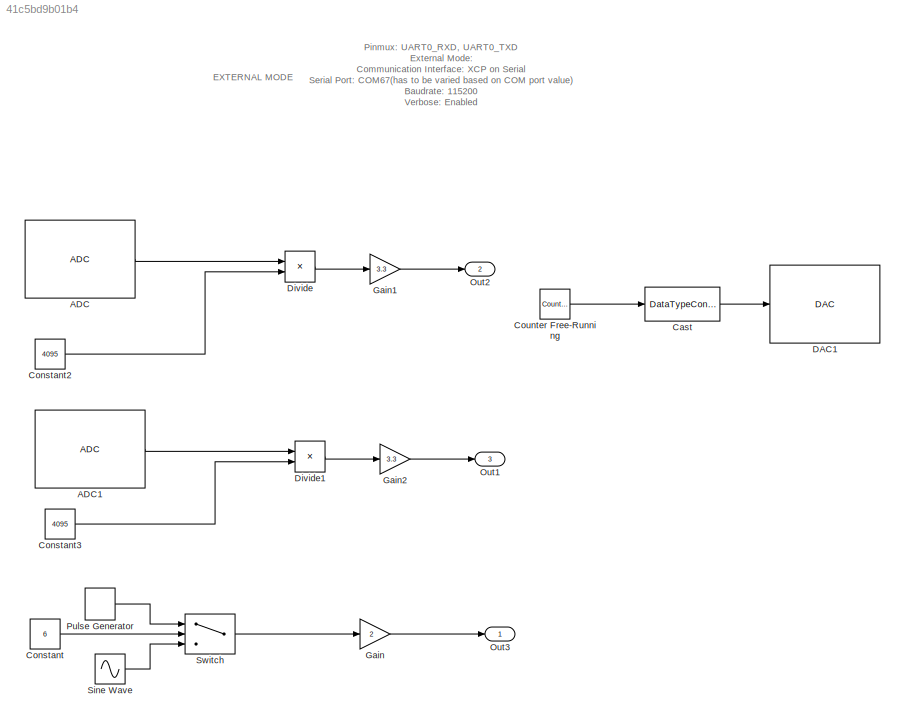
MODEL slx_41c5bd9b01b4
KIND model
CONFIG AbsTol = auto
CONFIG EnableMultiTasking = off
CONFIG FixedStep = auto
CONFIG MaxStep = auto
CONFIG MinStep = auto
CONFIG RelTol = 1e-3
CONFIG SampleTimeConstraint = Unconstrained
CONFIG SolverName = FixedStepAuto
CONFIG StartTime = 0.0
CONFIG StopTime = inf
BLOCK [Reference] ADC  REF=peripheral_library_blocks_am263x/ADC
  SourceBlock = peripheral_library_blocks_am263x/ADC
  SourceType = ADC_AM263X
BLOCK [Reference] ADC1  REF=peripheral_library_blocks_am263x/ADC
  SourceBlock = peripheral_library_blocks_am263x/ADC
  SourceType = ADC_AM263X
BLOCK [DataTypeConversion] Cast
  OutDataTypeStr = uint16
  RndMeth = Floor
  SaturateOnIntegerOverflow = off
BLOCK [Constant] Constant
  Value = 6
BLOCK [Constant] Constant2
  Value = 4095
BLOCK [Constant] Constant3
  Value = 4095
BLOCK [Reference] Counter Free-Running  REF=simulink/Sources/Counter
Free-Running
  SourceBlock = simulink/Sources/Counter\nFree-Running
  SourceType = Counter Free-Running
BLOCK [Reference] DAC1  REF=peripheral_library_blocks_am263x/DAC
  SourceBlock = peripheral_library_blocks_am263x/DAC
  SourceType = DAC_AM263X
BLOCK [Product] Divide
  Inputs = */
BLOCK [Product] Divide1
  Inputs = */
BLOCK [Gain] Gain
  Gain = 2
BLOCK [Gain] Gain1
  Gain = 3.3
BLOCK [Gain] Gain2
  Gain = 3.3
BLOCK [Outport] Out1
  Port = 3
BLOCK [Outport] Out2
  Port = 2
BLOCK [Outport] Out3
BLOCK [DiscretePulseGenerator] Pulse Generator
  Amplitude = 500
  Period = 20
  PulseWidth = 15
BLOCK [Sin] Sine Wave
  Amplitude = 250
  Frequency = 0.5
  SampleTime = 0
BLOCK [Switch] Switch
  Criteria = u2 > Threshold
  InputSameDT = off
  SaturateOnIntegerOverflow = off
  Threshold = 5
ANNOTATION (root): EXTERNAL MODE
ANNOTATION (root): Pinmux: UART0_RXD, UART0_TXD External Mode: Communication Interface: XCP on Serial Serial Port: COM67(has to be varied based on COM port value) Baudrate: 115200 Verbose: Enabled
LINE ADC1:1 -> Divide1:1
LINE ADC:1 -> Divide:1
LINE Cast:1 -> DAC1:1
LINE Constant2:1 -> Divide:2
LINE Constant3:1 -> Divide1:2
LINE Constant:1 -> Switch:2
LINE Counter Free-Running:1 -> Cast:1
LINE Divide1:1 -> Gain2:1
LINE Divide:1 -> Gain1:1
LINE Gain1:1 -> Out2:1
LINE Gain2:1 -> Out1:1
LINE Gain:1 -> Out3:1
LINE Pulse Generator:1 -> Switch:1
LINE Sine Wave:1 -> Switch:3
LINE Switch:1 -> Gain:1
